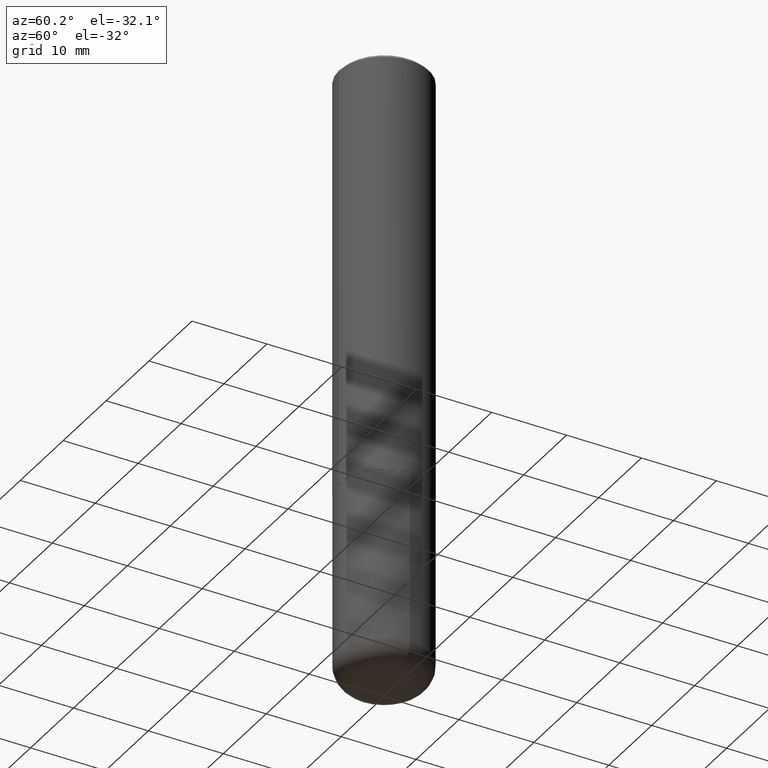
[diagram: clean part render]
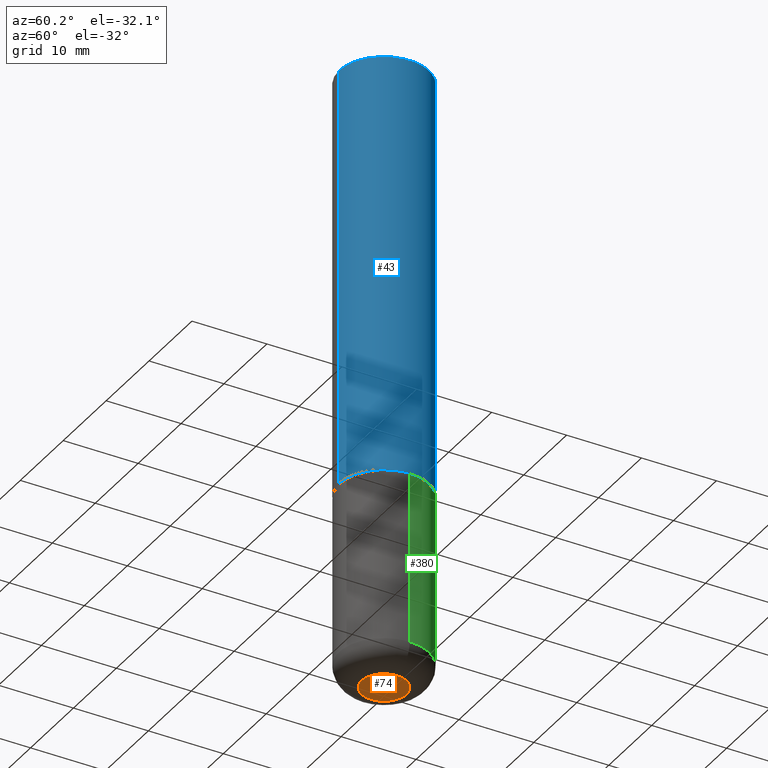
[diagram: same view with three faces highlighted in distinct colors, each labeled with its STEP entity id]
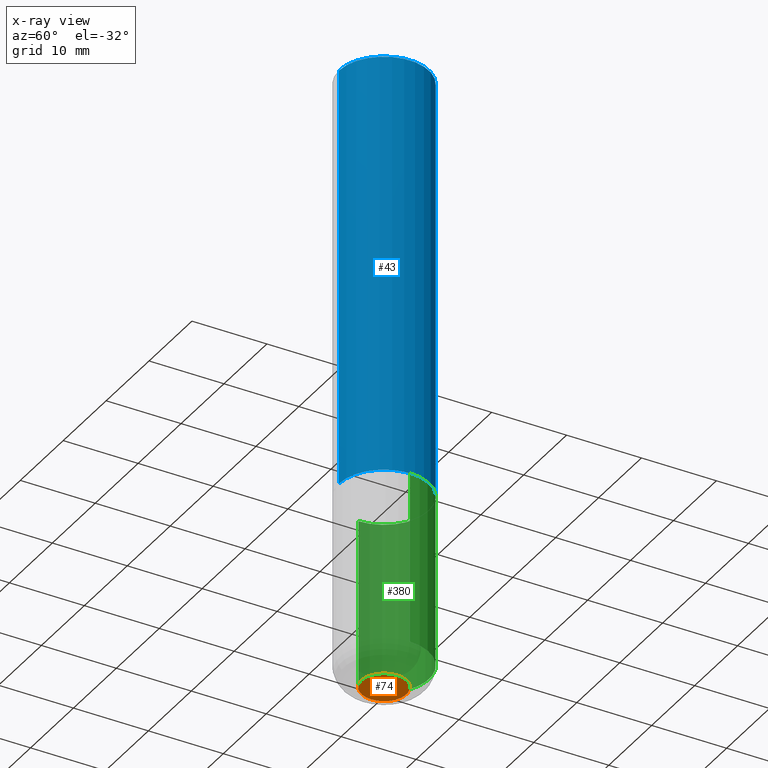
[diagram: x-ray of the same camera — body ghosted, the three highlighted faces saturated]
A machine part, auxiliary view with three faces highlighted in distinct colors.
The next image is the same camera in x-ray (body ghosted, the three faces saturated) — at least one of them is partly hidden behind the body in this view.
Their STEP definitions:

[orange] entity #74 — the highlighted planar face has unit normal (0, -0, -1).
#12 = AXIS2_PLACEMENT_3D ( 'NONE', #410, #403, #375 ) ;
#16 = EDGE_CURVE ( 'NONE', #179, #213, #304, .T. ) ;
#44 = ORIENTED_EDGE ( 'NONE', *, *, #362, .F. ) ;
#53 = CARTESIAN_POINT ( 'NONE',  ( 7.991058417971169471E-29, -1.140911357093774486E-14, -3.267699999999999605 ) ) ;
#74 = ADVANCED_FACE ( 'NONE', ( #323 ), #386, .T. ) ;
#89 = EDGE_LOOP ( 'NONE', ( #44, #242 ) ) ;
#134 = DIRECTION ( 'NONE',  ( 1.000000000000000000, -6.982962677686272233E-15, 0.000000000000000000 ) ) ;
#163 = AXIS2_PLACEMENT_3D ( 'NONE', #360, #328, #134 ) ;
#179 = VERTEX_POINT ( 'NONE', #222 ) ;
#180 = DIRECTION ( 'NONE',  ( 1.000000000000000000, -6.982962677686272233E-15, 0.000000000000000000 ) ) ;
#185 = DIRECTION ( 'NONE',  ( -2.445468806185136597E-29, 3.491481338843145583E-15, 1.000000000000000000 ) ) ;
#213 = VERTEX_POINT ( 'NONE', #389 ) ;
#218 = AXIS2_PLACEMENT_3D ( 'NONE', #53, #185, #180 ) ;
#222 = CARTESIAN_POINT ( 'NONE',  ( -0.1181000000000000383, -9.944215141480041685E-15, -3.267699999999999605 ) ) ;
#242 = ORIENTED_EDGE ( 'NONE', *, *, #16, .F. ) ;
#304 = CIRCLE ( 'NONE', #163, 0.1181000000000000105 ) ;
#323 = FACE_OUTER_BOUND ( 'NONE', #89, .T. ) ;
#328 = DIRECTION ( 'NONE',  ( -2.445468806185136597E-29, 3.491481338843145583E-15, 1.000000000000000000 ) ) ;
#360 = CARTESIAN_POINT ( 'NONE',  ( 7.991058417971169471E-29, -1.140911357093774486E-14, -3.267699999999999605 ) ) ;
#362 = EDGE_CURVE ( 'NONE', #213, #179, #388, .T. ) ;
#375 = DIRECTION ( 'NONE',  ( -1.000000000000000000, 6.982962677686265922E-15, -4.876176775795935793E-29 ) ) ;
#386 = PLANE ( 'NONE',  #12 ) ;
#388 = CIRCLE ( 'NONE', #218, 0.1181000000000000105 ) ;
#389 = CARTESIAN_POINT ( 'NONE',  ( 0.1181000000000000105, -1.223380146317249313E-14, -3.267699999999999605 ) ) ;
#403 = DIRECTION ( 'NONE',  ( 2.438088387897960049E-29, -3.491481338843145188E-15, -1.000000000000000000 ) ) ;
#410 = CARTESIAN_POINT ( 'NONE',  ( 1.854752379248561175E-28, 3.708345682062618425E-15, -3.267699999999999605 ) ) ;

[blue] entity #43 — the highlighted cylindrical surface (partial cylindrical patch) has radius 5.9995 mm, axis along (-0, 0, 1).
#4 = CARTESIAN_POINT ( 'NONE',  ( -1.620449627073635276E-15, -0.2362000000000001043, -0.01999999999999922673 ) ) ;
#15 = LINE ( 'NONE', #192, #271 ) ;
#22 = EDGE_CURVE ( 'NONE', #83, #391, #15, .T. ) ;
#26 = CARTESIAN_POINT ( 'NONE',  ( 0.000000000000000000, 0.000000000000000000, 0.000000000000000000 ) ) ;
#29 = DIRECTION ( 'NONE',  ( -2.446288790796431609E-29, 3.490307074209145490E-15, 1.000000000000000000 ) ) ;
#36 = CIRCLE ( 'NONE', #278, 0.2362000000000002986 ) ;
#40 = EDGE_LOOP ( 'NONE', ( #227, #216, #181, #414 ) ) ;
#43 = ADVANCED_FACE ( 'NONE', ( #105 ), #316, .T. ) ;
#50 = EDGE_CURVE ( 'NONE', #345, #391, #357, .T. ) ;
#83 = VERTEX_POINT ( 'NONE', #162 ) ;
#103 = DIRECTION ( 'NONE',  ( -2.446288790796431609E-29, 3.490307074209145490E-15, 1.000000000000000000 ) ) ;
#105 = FACE_OUTER_BOUND ( 'NONE', #40, .T. ) ;
#112 = CARTESIAN_POINT ( 'NONE',  ( -1.649375784469497117E-15, -0.2362000000000001598, 8.244105309282006832E-16 ) ) ;
#116 = VECTOR ( 'NONE', #202, 39.37007874015748143 ) ;
#126 = DIRECTION ( 'NONE',  ( -2.446288790796431609E-29, 3.490307074209145884E-15, 1.000000000000000000 ) ) ;
#138 = LINE ( 'NONE', #112, #116 ) ;
#162 = CARTESIAN_POINT ( 'NONE',  ( 1.678301941865385779E-15, 0.2361999999999924715, -2.243100000000000982 ) ) ;
#165 = DIRECTION ( 'NONE',  ( -6.982962677686265922E-15, -1.000000000000000000, 3.469747663417772663E-15 ) ) ;
#181 = ORIENTED_EDGE ( 'NONE', *, *, #50, .F. ) ;
#192 = CARTESIAN_POINT ( 'NONE',  ( 1.678301941865357577E-15, 0.2362000000000001598, -8.244105309282006832E-16 ) ) ;
#202 = DIRECTION ( 'NONE',  ( -2.446288790796431609E-29, 3.490307074209145884E-15, 1.000000000000000000 ) ) ;
#215 = AXIS2_PLACEMENT_3D ( 'NONE', #282, #29, #258 ) ;
#216 = ORIENTED_EDGE ( 'NONE', *, *, #22, .T. ) ;
#227 = ORIENTED_EDGE ( 'NONE', *, *, #254, .T. ) ;
#233 = CARTESIAN_POINT ( 'NONE',  ( 5.487270386635476339E-29, -7.829107798158534704E-15, -2.243100000000000094 ) ) ;
#241 = EDGE_CURVE ( 'NONE', #401, #345, #138, .T. ) ;
#254 = EDGE_CURVE ( 'NONE', #401, #83, #36, .T. ) ;
#258 = DIRECTION ( 'NONE',  ( -6.982962677686265922E-15, -1.000000000000000000, 3.487819265831411350E-15 ) ) ;
#271 = VECTOR ( 'NONE', #126, 39.37007874015748143 ) ;
#275 = CARTESIAN_POINT ( 'NONE',  ( 1.649375784469496722E-15, 0.2361999999999999655, -0.02000000000000087472 ) ) ;
#278 = AXIS2_PLACEMENT_3D ( 'NONE', #233, #296, #165 ) ;
#282 = CARTESIAN_POINT ( 'NONE',  ( 4.892577581592875165E-31, -6.980614148418308383E-17, -0.02000000000000005246 ) ) ;
#286 = DIRECTION ( 'NONE',  ( -6.982962677686265922E-15, -1.000000000000000000, 3.490307074209145490E-15 ) ) ;
#289 = AXIS2_PLACEMENT_3D ( 'NONE', #26, #103, #286 ) ;
#296 = DIRECTION ( 'NONE',  ( -2.446288790796431609E-29, 3.490307074209145490E-15, 1.000000000000000000 ) ) ;
#316 = CYLINDRICAL_SURFACE ( 'NONE', #289, 0.2362000000000001598 ) ;
#345 = VERTEX_POINT ( 'NONE', #4 ) ;
#357 = CIRCLE ( 'NONE', #215, 0.2362000000000000210 ) ;
#391 = VERTEX_POINT ( 'NONE', #275 ) ;
#394 = CARTESIAN_POINT ( 'NONE',  ( -1.649375784469443277E-15, -0.2362000000000081257, -2.243099999999999206 ) ) ;
#401 = VERTEX_POINT ( 'NONE', #394 ) ;
#414 = ORIENTED_EDGE ( 'NONE', *, *, #241, .F. ) ;

[green] entity #380 — the highlighted cylindrical surface (partial cylindrical patch) has radius 5.9995 mm, axis along (-0, 0, 1).
#2 = DIRECTION ( 'NONE',  ( -2.445468806185136877E-29, 3.491481338843145188E-15, 1.000000000000000000 ) ) ;
#11 = DIRECTION ( 'NONE',  ( -2.445468806185136597E-29, 3.491481338843145583E-15, 1.000000000000000000 ) ) ;
#25 = EDGE_CURVE ( 'NONE', #372, #239, #63, .T. ) ;
#37 = CARTESIAN_POINT ( 'NONE',  ( -0.2361999999999998823, -9.318467682955017493E-15, -3.149600000000000399 ) ) ;
#63 = CIRCLE ( 'NONE', #100, 0.2362000000000000210 ) ;
#69 = EDGE_LOOP ( 'NONE', ( #364, #161, #307, #277 ) ) ;
#70 = CIRCLE ( 'NONE', #322, 0.2361999999999999933 ) ;
#100 = AXIS2_PLACEMENT_3D ( 'NONE', #352, #325, #347 ) ;
#102 = AXIS2_PLACEMENT_3D ( 'NONE', #214, #11, #246 ) ;
#114 = CARTESIAN_POINT ( 'NONE',  ( 0.2361999999999999933, -1.649375784469496131E-15, 1.151752954443000088E-29 ) ) ;
#118 = DIRECTION ( 'NONE',  ( 1.000000000000000000, -6.982962677686269077E-15, 0.000000000000000000 ) ) ;
#122 = CARTESIAN_POINT ( 'NONE',  ( 0.2361999999999998823, -1.264614540928986883E-14, -3.149600000000000399 ) ) ;
#127 = CYLINDRICAL_SURFACE ( 'NONE', #102, 0.2361999999999999933 ) ;
#142 = DIRECTION ( 'NONE',  ( -2.445468806185136877E-29, 3.491481338843145188E-15, 1.000000000000000000 ) ) ;
#144 = CARTESIAN_POINT ( 'NONE',  ( -0.2361999999999999933, -7.737699506793781719E-15, -2.244100000000000428 ) ) ;
#150 = FACE_OUTER_BOUND ( 'NONE', #69, .T. ) ;
#161 = ORIENTED_EDGE ( 'NONE', *, *, #273, .T. ) ;
#172 = LINE ( 'NONE', #114, #244 ) ;
#194 = CARTESIAN_POINT ( 'NONE',  ( 0.2361999999999999933, -9.484609056967400443E-15, -2.244100000000000428 ) ) ;
#198 = LINE ( 'NONE', #259, #290 ) ;
#214 = CARTESIAN_POINT ( 'NONE',  ( 0.000000000000000000, 0.000000000000000000, 0.000000000000000000 ) ) ;
#239 = VERTEX_POINT ( 'NONE', #37 ) ;
#244 = VECTOR ( 'NONE', #2, 39.37007874015748143 ) ;
#245 = VERTEX_POINT ( 'NONE', #194 ) ;
#246 = DIRECTION ( 'NONE',  ( 1.000000000000000000, -6.982962677686266711E-15, 4.876176775795936353E-29 ) ) ;
#259 = CARTESIAN_POINT ( 'NONE',  ( -0.2361999999999999933, 1.678301941865356591E-15, -1.161852468318208757E-29 ) ) ;
#270 = CARTESIAN_POINT ( 'NONE',  ( 5.487876547960065873E-29, -7.835233272497903917E-15, -2.244100000000000428 ) ) ;
#273 = EDGE_CURVE ( 'NONE', #239, #300, #198, .T. ) ;
#277 = ORIENTED_EDGE ( 'NONE', *, *, #287, .F. ) ;
#287 = EDGE_CURVE ( 'NONE', #372, #245, #172, .T. ) ;
#290 = VECTOR ( 'NONE', #142, 39.37007874015748143 ) ;
#300 = VERTEX_POINT ( 'NONE', #144 ) ;
#307 = ORIENTED_EDGE ( 'NONE', *, *, #318, .F. ) ;
#318 = EDGE_CURVE ( 'NONE', #245, #300, #70, .T. ) ;
#322 = AXIS2_PLACEMENT_3D ( 'NONE', #270, #392, #118 ) ;
#325 = DIRECTION ( 'NONE',  ( -2.445468806185136597E-29, 3.491481338843145583E-15, 1.000000000000000000 ) ) ;
#347 = DIRECTION ( 'NONE',  ( 1.000000000000000000, -6.982962677686264344E-15, 0.000000000000000000 ) ) ;
#352 = CARTESIAN_POINT ( 'NONE',  ( 7.702248551960706711E-29, -1.099676962482037231E-14, -3.149600000000000399 ) ) ;
#364 = ORIENTED_EDGE ( 'NONE', *, *, #25, .T. ) ;
#372 = VERTEX_POINT ( 'NONE', #122 ) ;
#380 = ADVANCED_FACE ( 'NONE', ( #150 ), #127, .T. ) ;
#392 = DIRECTION ( 'NONE',  ( -2.445468806185136597E-29, 3.491481338843145583E-15, 1.000000000000000000 ) ) ;